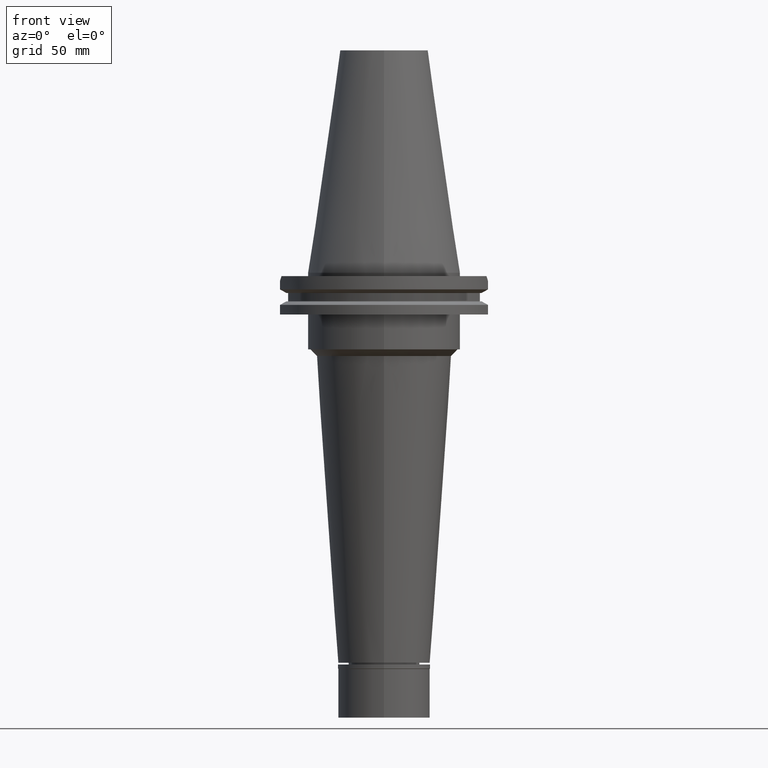
[diagram: clean part render]
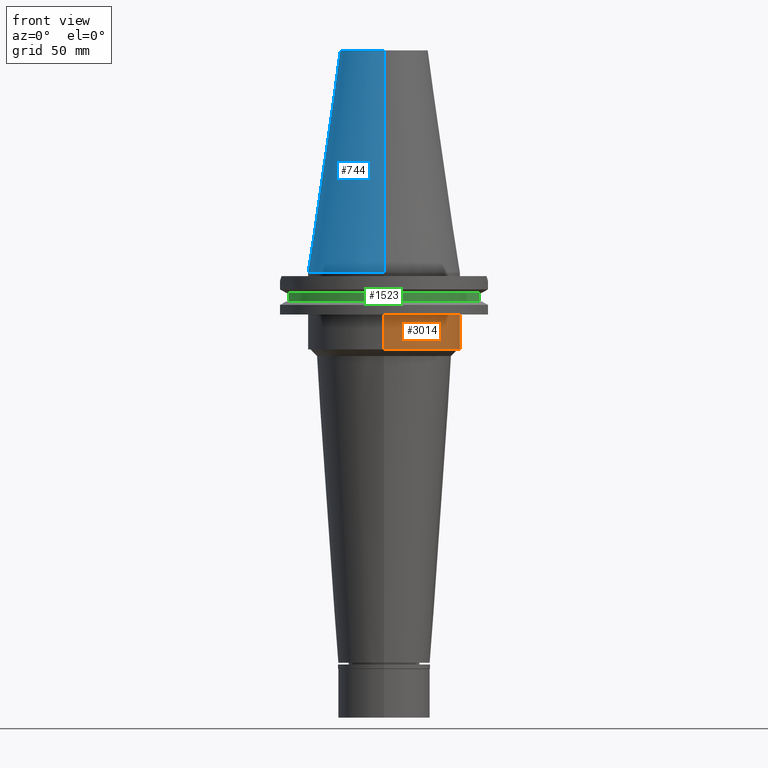
[diagram: same view with three faces highlighted in distinct colors, each labeled with its STEP entity id]
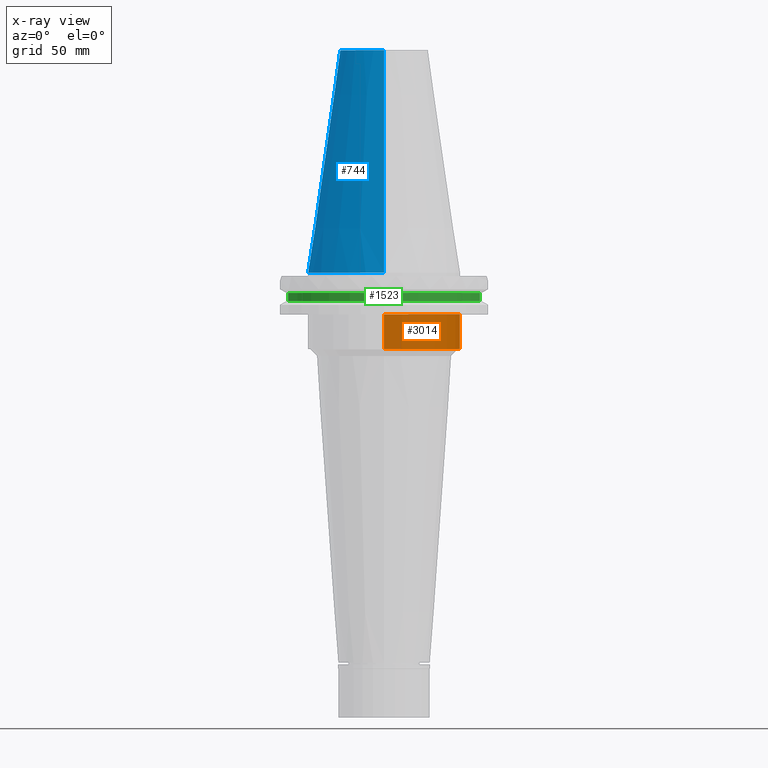
[diagram: x-ray of the same camera — body ghosted, the three highlighted faces saturated]
A machine part, front view with three faces highlighted in distinct colors.
The next image is the same camera in x-ray (body ghosted, the three faces saturated) — at least one of them is partly hidden behind the body in this view.
Their STEP definitions:

[orange] entity #3014 — the highlighted cylindrical surface (partial cylindrical patch) has radius 34.925 mm, axis along (0, 0, -1).
#10 = VECTOR ( 'NONE', #2919, 1000.000000000000000 ) ;
#27 = LINE ( 'NONE', #539, #10 ) ;
#124 = LINE ( 'NONE', #1281, #3123 ) ;
#156 = CARTESIAN_POINT ( 'NONE',  ( 0.0000000000000000000, 2.650931693773999749E-14, -35.00000000000000000 ) ) ;
#194 = AXIS2_PLACEMENT_3D ( 'NONE', #2902, #580, #1607 ) ;
#227 = ORIENTED_EDGE ( 'NONE', *, *, #1119, .T. ) ;
#429 = EDGE_CURVE ( 'NONE', #3217, #2257, #124, .T. ) ;
#500 = DIRECTION ( 'NONE',  ( 0.0000000000000000000, 0.0000000000000000000, -1.000000000000000000 ) ) ;
#539 = CARTESIAN_POINT ( 'NONE',  ( 0.0000000000000000000, -34.92499999999999716, -19.05000000000000071 ) ) ;
#580 = DIRECTION ( 'NONE',  ( 0.0000000000000000000, 0.0000000000000000000, -1.000000000000000000 ) ) ;
#675 = CARTESIAN_POINT ( 'NONE',  ( 0.0000000000000000000, 34.92499999999999716, -35.00000000000000000 ) ) ;
#697 = ORIENTED_EDGE ( 'NONE', *, *, #2692, .T. ) ;
#861 = VERTEX_POINT ( 'NONE', #2535 ) ;
#975 = FACE_OUTER_BOUND ( 'NONE', #2721, .T. ) ;
#1119 = EDGE_CURVE ( 'NONE', #3217, #2798, #1120, .T. ) ;
#1120 = CIRCLE ( 'NONE', #194, 34.92499999999999716 ) ;
#1128 = AXIS2_PLACEMENT_3D ( 'NONE', #156, #1480, #1933 ) ;
#1187 = CARTESIAN_POINT ( 'NONE',  ( 0.0000000000000000000, 34.92499999999999716, -19.05000000000000071 ) ) ;
#1281 = CARTESIAN_POINT ( 'NONE',  ( 0.0000000000000000000, 34.92499999999999716, -19.05000000000000071 ) ) ;
#1456 = DIRECTION ( 'NONE',  ( 0.0000000000000000000, 0.0000000000000000000, -1.000000000000000000 ) ) ;
#1480 = DIRECTION ( 'NONE',  ( 0.0000000000000000000, 0.0000000000000000000, 1.000000000000000000 ) ) ;
#1489 = CYLINDRICAL_SURFACE ( 'NONE', #3171, 34.92499999999999716 ) ;
#1607 = DIRECTION ( 'NONE',  ( 0.0000000000000000000, 1.000000000000000000, 0.0000000000000000000 ) ) ;
#1719 = EDGE_CURVE ( 'NONE', #861, #2257, #3089, .T. ) ;
#1919 = ORIENTED_EDGE ( 'NONE', *, *, #429, .F. ) ;
#1925 = CARTESIAN_POINT ( 'NONE',  ( 0.0000000000000000000, -34.92499999999999716, -19.05000000000000071 ) ) ;
#1933 = DIRECTION ( 'NONE',  ( 0.0000000000000000000, -1.000000000000000000, 0.0000000000000000000 ) ) ;
#2257 = VERTEX_POINT ( 'NONE', #675 ) ;
#2281 = DIRECTION ( 'NONE',  ( 0.0000000000000000000, -1.000000000000000000, 0.0000000000000000000 ) ) ;
#2535 = CARTESIAN_POINT ( 'NONE',  ( 0.0000000000000000000, -34.92499999999999716, -35.00000000000000000 ) ) ;
#2692 = EDGE_CURVE ( 'NONE', #2798, #861, #27, .T. ) ;
#2721 = EDGE_LOOP ( 'NONE', ( #227, #697, #2912, #1919 ) ) ;
#2798 = VERTEX_POINT ( 'NONE', #1925 ) ;
#2902 = CARTESIAN_POINT ( 'NONE',  ( 0.0000000000000000000, 2.650931693773999749E-14, -19.05000000000000071 ) ) ;
#2912 = ORIENTED_EDGE ( 'NONE', *, *, #1719, .T. ) ;
#2919 = DIRECTION ( 'NONE',  ( 0.0000000000000000000, 0.0000000000000000000, -1.000000000000000000 ) ) ;
#3014 = ADVANCED_FACE ( 'NONE', ( #975 ), #1489, .T. ) ;
#3089 = CIRCLE ( 'NONE', #1128, 34.92499999999999716 ) ;
#3123 = VECTOR ( 'NONE', #1456, 1000.000000000000000 ) ;
#3171 = AXIS2_PLACEMENT_3D ( 'NONE', #3313, #500, #2281 ) ;
#3217 = VERTEX_POINT ( 'NONE', #1187 ) ;
#3313 = CARTESIAN_POINT ( 'NONE',  ( 0.0000000000000000000, 2.650931693773999749E-14, 116.4650000000000034 ) ) ;

[blue] entity #744 — the highlighted conical surface has half-angle 8.297 deg.
#14 = CARTESIAN_POINT ( 'NONE',  ( 0.0000000000000000000, -20.10832422388000040, 101.5999999999999943 ) ) ;
#24 = AXIS2_PLACEMENT_3D ( 'NONE', #2820, #2051, #503 ) ;
#130 = CARTESIAN_POINT ( 'NONE',  ( 0.0000000000000000000, -34.92499999999999716, 5.400124791776999712E-13 ) ) ;
#250 = EDGE_CURVE ( 'NONE', #2741, #650, #1493, .T. ) ;
#341 = ORIENTED_EDGE ( 'NONE', *, *, #1096, .T. ) ;
#503 = DIRECTION ( 'NONE',  ( 0.0000000000000000000, -1.000000000000000000, 0.0000000000000000000 ) ) ;
#509 = EDGE_CURVE ( 'NONE', #2122, #1313, #1112, .T. ) ;
#650 = VERTEX_POINT ( 'NONE', #1460 ) ;
#715 = EDGE_LOOP ( 'NONE', ( #1810, #971, #1180, #341 ) ) ;
#744 = ADVANCED_FACE ( 'NONE', ( #2067 ), #2686, .T. ) ;
#811 = DIRECTION ( 'NONE',  ( 0.0000000000000000000, 0.0000000000000000000, -1.000000000000000000 ) ) ;
#847 = CARTESIAN_POINT ( 'NONE',  ( 0.0000000000000000000, -20.10832422387000307, 101.5999999999999943 ) ) ;
#883 = LINE ( 'NONE', #2691, #2636 ) ;
#885 = DIRECTION ( 'NONE',  ( 0.0000000000000000000, 0.0000000000000000000, -1.000000000000000000 ) ) ;
#956 = AXIS2_PLACEMENT_3D ( 'NONE', #1135, #885, #1402 ) ;
#962 = AXIS2_PLACEMENT_3D ( 'NONE', #3128, #811, #2583 ) ;
#971 = ORIENTED_EDGE ( 'NONE', *, *, #1657, .F. ) ;
#1096 = EDGE_CURVE ( 'NONE', #1313, #650, #883, .T. ) ;
#1112 = CIRCLE ( 'NONE', #956, 20.10832422388000040 ) ;
#1135 = CARTESIAN_POINT ( 'NONE',  ( 0.0000000000000000000, 1.846767373113999857E-14, 101.5999999999999943 ) ) ;
#1180 = ORIENTED_EDGE ( 'NONE', *, *, #509, .T. ) ;
#1313 = VERTEX_POINT ( 'NONE', #2764 ) ;
#1348 = LINE ( 'NONE', #847, #2477 ) ;
#1400 = DIRECTION ( 'NONE',  ( 0.0000000000000000000, 0.1443069799456937474, -0.9895329683941577192 ) ) ;
#1402 = DIRECTION ( 'NONE',  ( 0.0000000000000000000, -1.000000000000000000, 0.0000000000000000000 ) ) ;
#1460 = CARTESIAN_POINT ( 'NONE',  ( 0.0000000000000000000, 34.92499999999999716, 5.400124791776999712E-13 ) ) ;
#1493 = CIRCLE ( 'NONE', #24, 34.92499999999999716 ) ;
#1657 = EDGE_CURVE ( 'NONE', #2122, #2741, #1348, .T. ) ;
#1810 = ORIENTED_EDGE ( 'NONE', *, *, #250, .F. ) ;
#2051 = DIRECTION ( 'NONE',  ( 0.0000000000000000000, 0.0000000000000000000, -1.000000000000000000 ) ) ;
#2067 = FACE_OUTER_BOUND ( 'NONE', #715, .T. ) ;
#2122 = VERTEX_POINT ( 'NONE', #14 ) ;
#2477 = VECTOR ( 'NONE', #2911, 1000.000000000000114 ) ;
#2583 = DIRECTION ( 'NONE',  ( 0.0000000000000000000, -1.000000000000000000, 0.0000000000000000000 ) ) ;
#2636 = VECTOR ( 'NONE', #1400, 1000.000000000000114 ) ;
#2686 = CONICAL_SURFACE ( 'NONE', #962, 27.51666211194000056, 0.1448125860318199565 ) ;
#2691 = CARTESIAN_POINT ( 'NONE',  ( 0.0000000000000000000, 20.10832422387000307, 101.5999999999999943 ) ) ;
#2741 = VERTEX_POINT ( 'NONE', #130 ) ;
#2764 = CARTESIAN_POINT ( 'NONE',  ( 0.0000000000000000000, 20.10832422388000040, 101.5999999999999943 ) ) ;
#2820 = CARTESIAN_POINT ( 'NONE',  ( 0.0000000000000000000, 1.846767373113999857E-14, 8.242295734816999588E-13 ) ) ;
#2911 = DIRECTION ( 'NONE',  ( 0.0000000000000000000, -0.1443069799456937474, -0.9895329683941577192 ) ) ;
#3128 = CARTESIAN_POINT ( 'NONE',  ( 0.0000000000000000000, 1.846767373113999857E-14, 50.79999999999999716 ) ) ;

[green] entity #1523 — the highlighted cylindrical surface (partial cylindrical patch) has radius 45.645 mm, axis along (0, 0, -1).
#26 = LINE ( 'NONE', #2112, #2028 ) ;
#72 = CARTESIAN_POINT ( 'NONE',  ( 0.0000000000000000000, 2.650931693773999749E-14, -13.04749999999999943 ) ) ;
#82 = CIRCLE ( 'NONE', #1332, 45.64500000000001734 ) ;
#179 = CARTESIAN_POINT ( 'NONE',  ( 0.0000000000000000000, 2.650931693773999749E-14, -9.207499999999999574 ) ) ;
#282 = CARTESIAN_POINT ( 'NONE',  ( 43.76795631508999662, -12.95500000000000007, -13.04749999999999943 ) ) ;
#395 = EDGE_CURVE ( 'NONE', #2226, #3169, #26, .T. ) ;
#421 = AXIS2_PLACEMENT_3D ( 'NONE', #179, #3332, #3349 ) ;
#532 = DIRECTION ( 'NONE',  ( 0.0000000000000000000, 0.0000000000000000000, 1.000000000000000000 ) ) ;
#773 = EDGE_CURVE ( 'NONE', #2226, #1886, #82, .T. ) ;
#776 = DIRECTION ( 'NONE',  ( 0.0000000000000000000, -1.000000000000000000, 0.0000000000000000000 ) ) ;
#820 = CARTESIAN_POINT ( 'NONE',  ( 43.76795631508999662, -12.95500000000000007, -9.207499999999999574 ) ) ;
#851 = ORIENTED_EDGE ( 'NONE', *, *, #884, .T. ) ;
#884 = EDGE_CURVE ( 'NONE', #1020, #3169, #1877, .T. ) ;
#930 = CARTESIAN_POINT ( 'NONE',  ( -43.76795631508999662, -12.95500000000000007, -9.207499999999999574 ) ) ;
#937 = EDGE_LOOP ( 'NONE', ( #1987, #851, #1901, #2363 ) ) ;
#1020 = VERTEX_POINT ( 'NONE', #1655 ) ;
#1021 = DIRECTION ( 'NONE',  ( 0.0000000000000000000, 0.0000000000000000000, -1.000000000000000000 ) ) ;
#1147 = DIRECTION ( 'NONE',  ( 0.0000000000000000000, 0.0000000000000000000, -1.000000000000000000 ) ) ;
#1269 = FACE_OUTER_BOUND ( 'NONE', #937, .T. ) ;
#1332 = AXIS2_PLACEMENT_3D ( 'NONE', #72, #532, #1780 ) ;
#1338 = DIRECTION ( 'NONE',  ( 0.0000000000000000000, 0.0000000000000000000, 1.000000000000000000 ) ) ;
#1523 = ADVANCED_FACE ( 'NONE', ( #1269 ), #2298, .T. ) ;
#1620 = EDGE_CURVE ( 'NONE', #1020, #1886, #2896, .T. ) ;
#1655 = CARTESIAN_POINT ( 'NONE',  ( 43.76795631508999662, -12.95500000000000007, -9.207499999999999574 ) ) ;
#1780 = DIRECTION ( 'NONE',  ( -0.9588773428654665532, -0.2838207908861898887, 0.0000000000000000000 ) ) ;
#1811 = CARTESIAN_POINT ( 'NONE',  ( 0.0000000000000000000, 2.650931693773999749E-14, 116.4650000000000034 ) ) ;
#1877 = CIRCLE ( 'NONE', #421, 45.64499999999999602 ) ;
#1886 = VERTEX_POINT ( 'NONE', #282 ) ;
#1901 = ORIENTED_EDGE ( 'NONE', *, *, #395, .F. ) ;
#1929 = CARTESIAN_POINT ( 'NONE',  ( -43.76795631508999662, -12.95500000000000007, -13.04749999999999943 ) ) ;
#1987 = ORIENTED_EDGE ( 'NONE', *, *, #1620, .F. ) ;
#2028 = VECTOR ( 'NONE', #1338, 1000.000000000000000 ) ;
#2046 = VECTOR ( 'NONE', #1147, 1000.000000000000000 ) ;
#2112 = CARTESIAN_POINT ( 'NONE',  ( -43.76795631508999662, -12.95500000000000007, -13.04749999999999943 ) ) ;
#2226 = VERTEX_POINT ( 'NONE', #1929 ) ;
#2298 = CYLINDRICAL_SURFACE ( 'NONE', #3352, 45.64499999999999602 ) ;
#2363 = ORIENTED_EDGE ( 'NONE', *, *, #773, .T. ) ;
#2896 = LINE ( 'NONE', #820, #2046 ) ;
#3169 = VERTEX_POINT ( 'NONE', #930 ) ;
#3332 = DIRECTION ( 'NONE',  ( 0.0000000000000000000, 0.0000000000000000000, -1.000000000000000000 ) ) ;
#3349 = DIRECTION ( 'NONE',  ( 0.0000000000000000000, -1.000000000000000000, 0.0000000000000000000 ) ) ;
#3352 = AXIS2_PLACEMENT_3D ( 'NONE', #1811, #1021, #776 ) ;